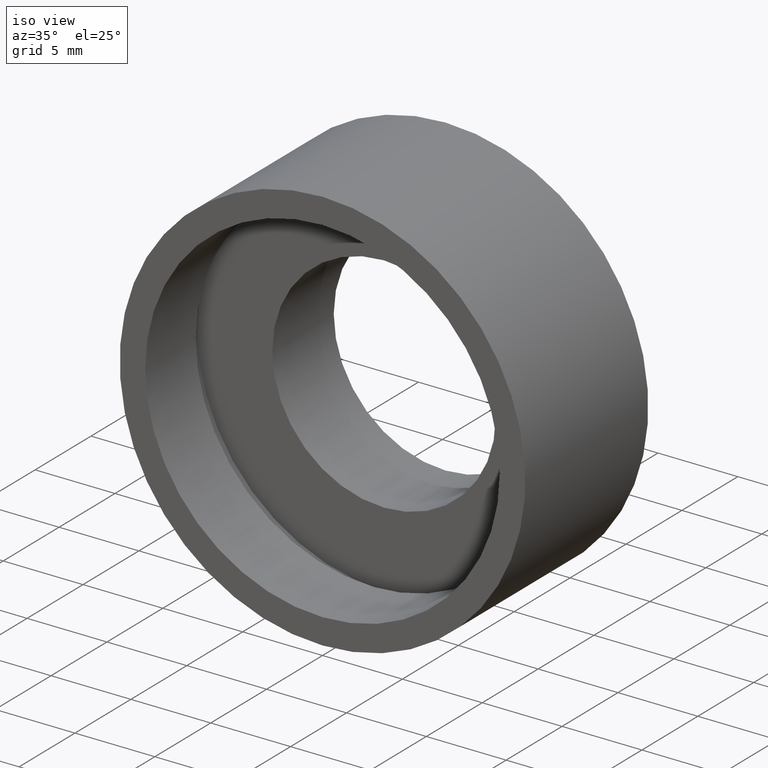
[diagram: clean part render]
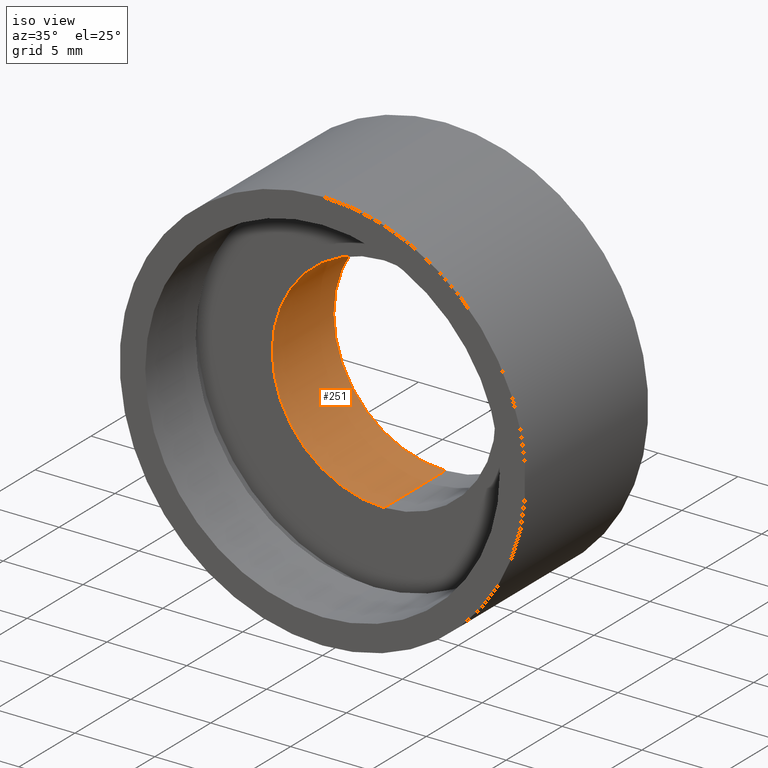
[diagram: same view with one face highlighted and labeled with its STEP entity id]
A machine part, iso view. The second image highlights one B-rep face of the part: STEP entity #251.
In plain terms, the highlighted cylindrical surface (partial cylindrical patch) has radius 7 mm, axis along (-0, 1, -0).
Its self-contained STEP definition (entity closure, byte-faithful):
#10 = DIRECTION ( 'NONE',  ( -0.0000000000000000000, 1.000000000000000000, -0.0000000000000000000 ) ) ;
#23 = DIRECTION ( 'NONE',  ( -0.0000000000000000000, 1.000000000000000000, -0.0000000000000000000 ) ) ;
#30 = DIRECTION ( 'NONE',  ( -0.0000000000000000000, 1.000000000000000000, -0.0000000000000000000 ) ) ;
#35 = ORIENTED_EDGE ( 'NONE', *, *, #141, .T. ) ;
#40 = VERTEX_POINT ( 'NONE', #328 ) ;
#60 = ORIENTED_EDGE ( 'NONE', *, *, #419, .F. ) ;
#69 = VERTEX_POINT ( 'NONE', #119 ) ;
#100 = ORIENTED_EDGE ( 'NONE', *, *, #402, .T. ) ;
#102 = EDGE_CURVE ( 'NONE', #40, #69, #151, .T. ) ;
#113 = CARTESIAN_POINT ( 'NONE',  ( 8.572527594031482100E-016, 10.99999999999999600, -7.000000000000008000 ) ) ;
#117 = VECTOR ( 'NONE', #416, 1000.000000000000000 ) ;
#119 = CARTESIAN_POINT ( 'NONE',  ( 0.0000000000000000000, 10.99999999999999600, 7.000000000000007100 ) ) ;
#141 = EDGE_CURVE ( 'NONE', #407, #69, #156, .T. ) ;
#148 = CARTESIAN_POINT ( 'NONE',  ( 0.0000000000000000000, 60.02082041425541100, 7.000000000000006200 ) ) ;
#151 = LINE ( 'NONE', #148, #117 ) ;
#156 = CIRCLE ( 'NONE', #207, 7.000000000000007100 ) ;
#205 = CYLINDRICAL_SURFACE ( 'NONE', #415, 7.000000000000006200 ) ;
#207 = AXIS2_PLACEMENT_3D ( 'NONE', #384, #389, #365 ) ;
#219 = VERTEX_POINT ( 'NONE', #369 ) ;
#224 = CARTESIAN_POINT ( 'NONE',  ( 8.572527594031480100E-016, 60.02082041425541100, -7.000000000000006200 ) ) ;
#241 = FACE_OUTER_BOUND ( 'NONE', #248, .T. ) ;
#248 = EDGE_LOOP ( 'NONE', ( #60, #100, #35, #366 ) ) ;
#251 = ADVANCED_FACE ( 'NONE', ( #241 ), #205, .F. ) ;
#276 = LINE ( 'NONE', #224, #284 ) ;
#283 = CIRCLE ( 'NONE', #305, 7.000000000000006200 ) ;
#284 = VECTOR ( 'NONE', #30, 1000.000000000000000 ) ;
#305 = AXIS2_PLACEMENT_3D ( 'NONE', #353, #23, #316 ) ;
#316 = DIRECTION ( 'NONE',  ( 0.0000000000000000000, 0.0000000000000000000, 1.000000000000000000 ) ) ;
#328 = CARTESIAN_POINT ( 'NONE',  ( 0.0000000000000000000, 5.499999999999998200, 7.000000000000006200 ) ) ;
#335 = CARTESIAN_POINT ( 'NONE',  ( 0.0000000000000000000, 60.02082041425541100, 0.0000000000000000000 ) ) ;
#348 = DIRECTION ( 'NONE',  ( 0.0000000000000000000, 0.0000000000000000000, 1.000000000000000000 ) ) ;
#353 = CARTESIAN_POINT ( 'NONE',  ( 0.0000000000000000000, 5.499999999999998200, 0.0000000000000000000 ) ) ;
#365 = DIRECTION ( 'NONE',  ( 0.0000000000000000000, 0.0000000000000000000, 1.000000000000000000 ) ) ;
#366 = ORIENTED_EDGE ( 'NONE', *, *, #102, .F. ) ;
#369 = CARTESIAN_POINT ( 'NONE',  ( 8.572527594031480100E-016, 5.499999999999998200, -7.000000000000006200 ) ) ;
#384 = CARTESIAN_POINT ( 'NONE',  ( 0.0000000000000000000, 10.99999999999999600, 0.0000000000000000000 ) ) ;
#389 = DIRECTION ( 'NONE',  ( -0.0000000000000000000, 1.000000000000000000, -0.0000000000000000000 ) ) ;
#402 = EDGE_CURVE ( 'NONE', #219, #407, #276, .T. ) ;
#407 = VERTEX_POINT ( 'NONE', #113 ) ;
#415 = AXIS2_PLACEMENT_3D ( 'NONE', #335, #10, #348 ) ;
#416 = DIRECTION ( 'NONE',  ( -0.0000000000000000000, 1.000000000000000000, -0.0000000000000000000 ) ) ;
#419 = EDGE_CURVE ( 'NONE', #219, #40, #283, .T. ) ;